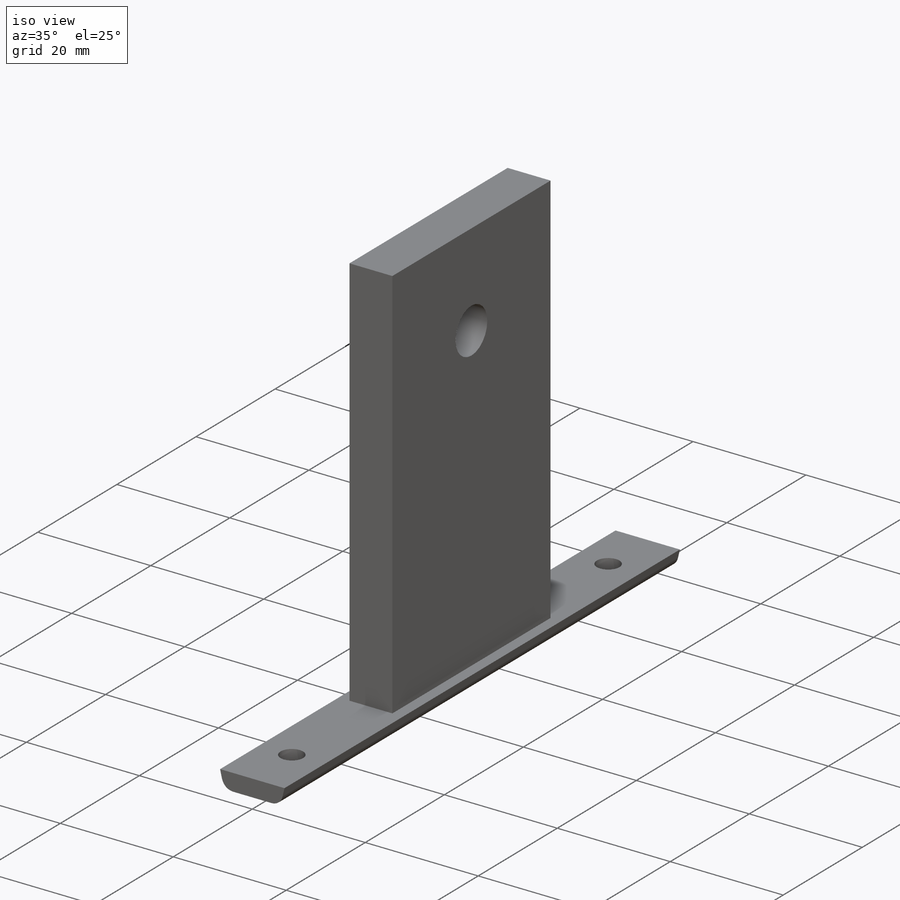
[diagram: iso view]
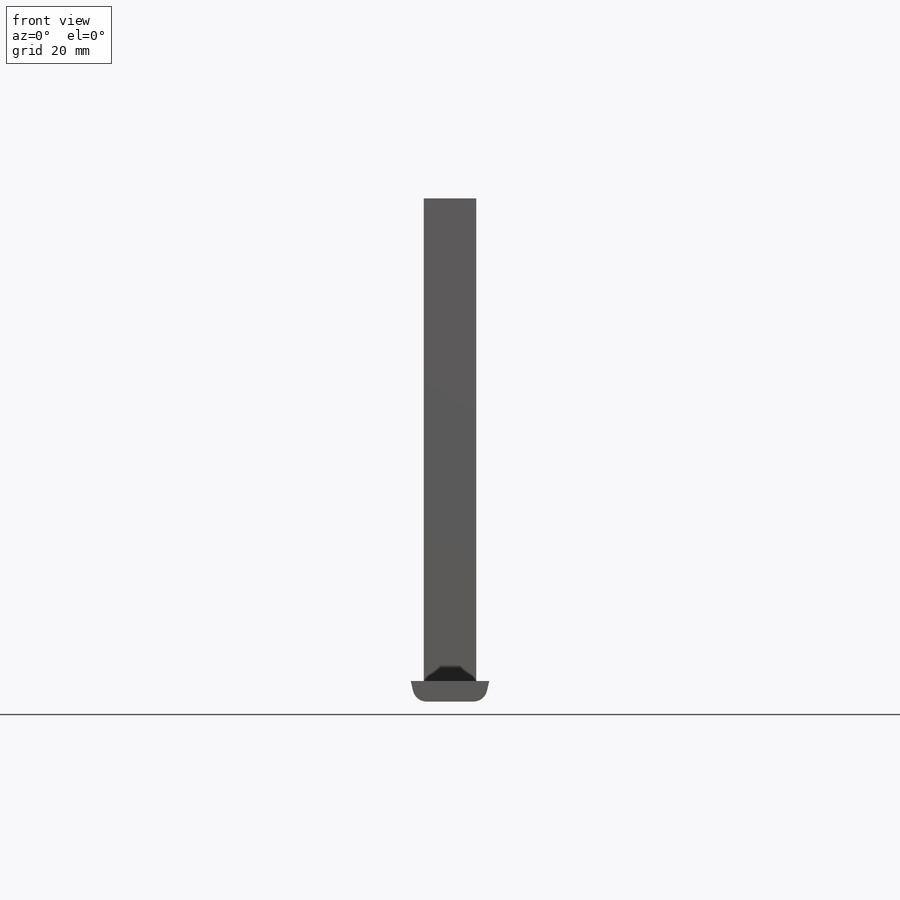
[diagram: front view]
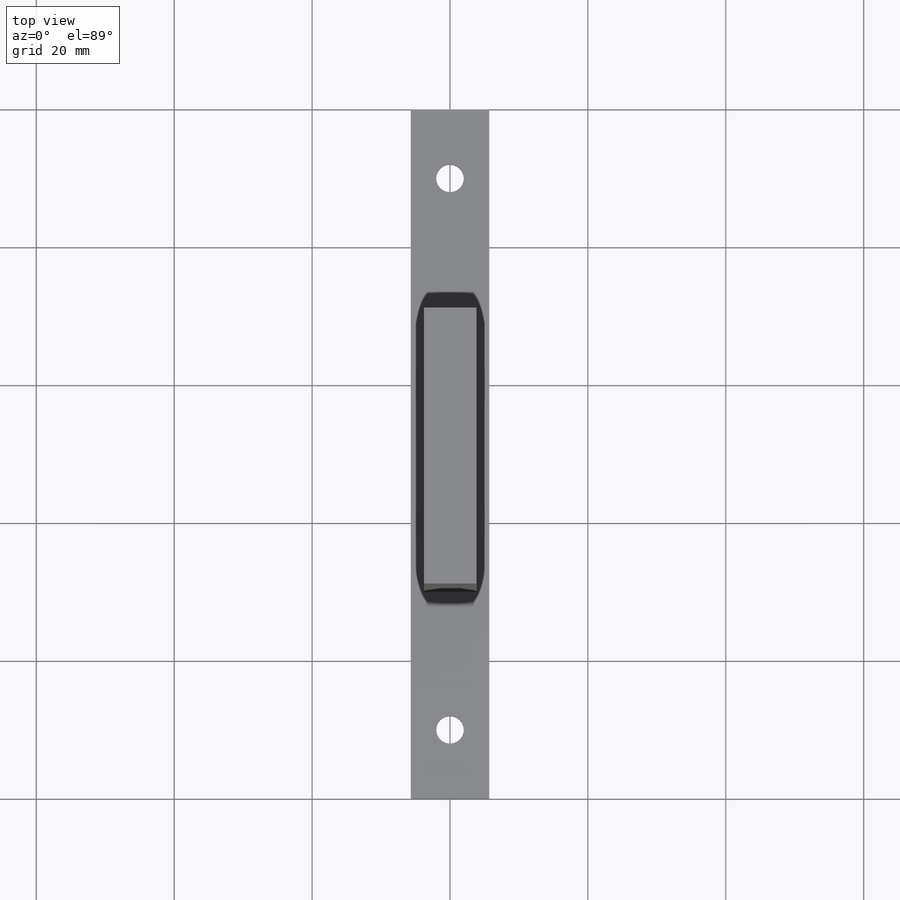
[diagram: top view]
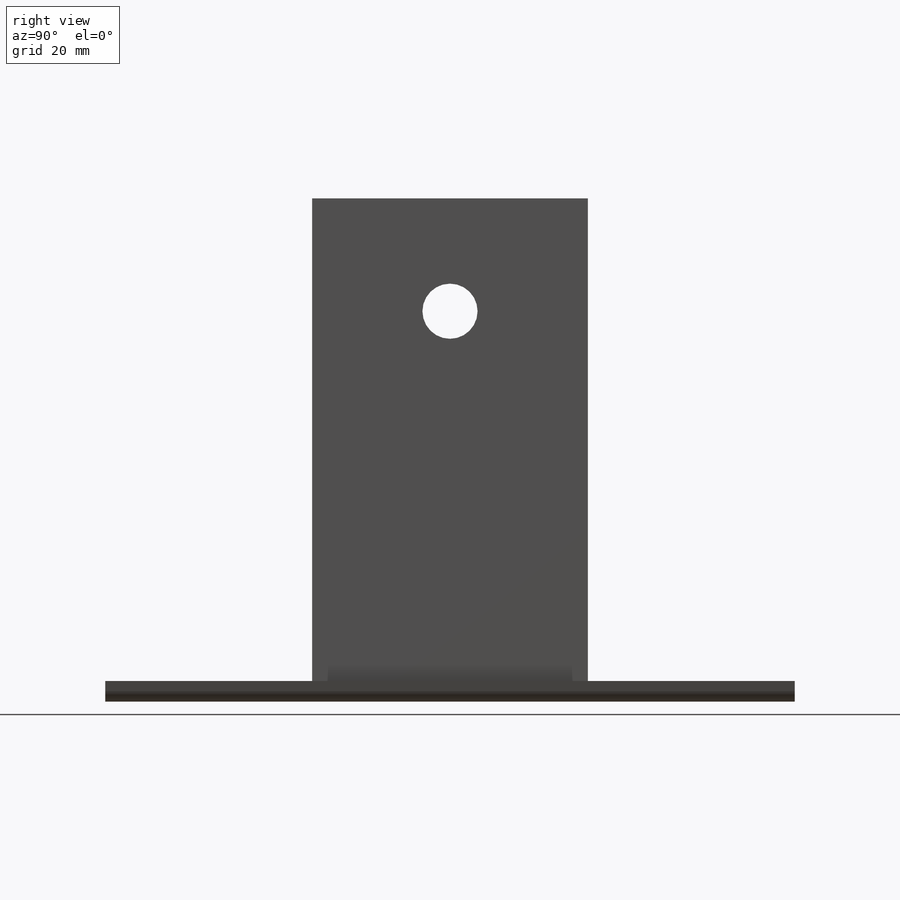
[diagram: right view]
SOLIDWORKS PART (.sldprt)
format: sldprt  version: not decoded by parser v0  size: 352,768 bytes
history: native  units: mm
features: sketch x5, cut_extrude x4, plane x3, material x1, extrude x1 (+10 scaffold rows collapsed)
feature tree (24):
  scaffold x10  (default folders/planes/origin — collapsed)
  material  "Material <não especificado>"
  plane  "Plano frontal"
  plane  "Plano superior"
  plane  "Plano direito"
  sketch  "Esboço1"  dims[c1.D9=2.0mm c1.D1=10.0mm c1.D2=4.0mm c1.D3=11.4mm c1.D4=5.7mm c1.D5=5.0mm c1.D6=7.6mm c1.D7=3.8mm c1.D8=70.0mm c2.D1=5.7mm c2.D2=5.7mm c2.D10=3.0mm]
  extrude  "Ressalto-extrusão2"  Depth=100mm
  sketch  "Esboço2"
  cut_extrude  "Corte-extrusão4"  Depth=30mm
  sketch  "3DSketch1"  dims[D1=0.0mm]
  cut_extrude  "Corte-extrusão5"  Depth=30mm
  sketch  "3DSketch4"  dims[c1.D1=4.0mm c1.D2=4.0mm c2.D1=~48.178625mm c2.D3=10.0mm c2.D4=10.0mm]
  cut_extrude  "Corte-extrusão7"  Depth=22mm
  sketch  "3DSketch5"  dims[c1.D1=8.0mm c2.D1=3.8mm]
  cut_extrude  "Corte-extrusão8"  Depth=26mm
decode coverage: 9 of 10 modeling features carry decoded parameters
note: ~ marks probable driven/reference dimensions
note: suppression state not decoded; provenance and decode notes live in map.json
